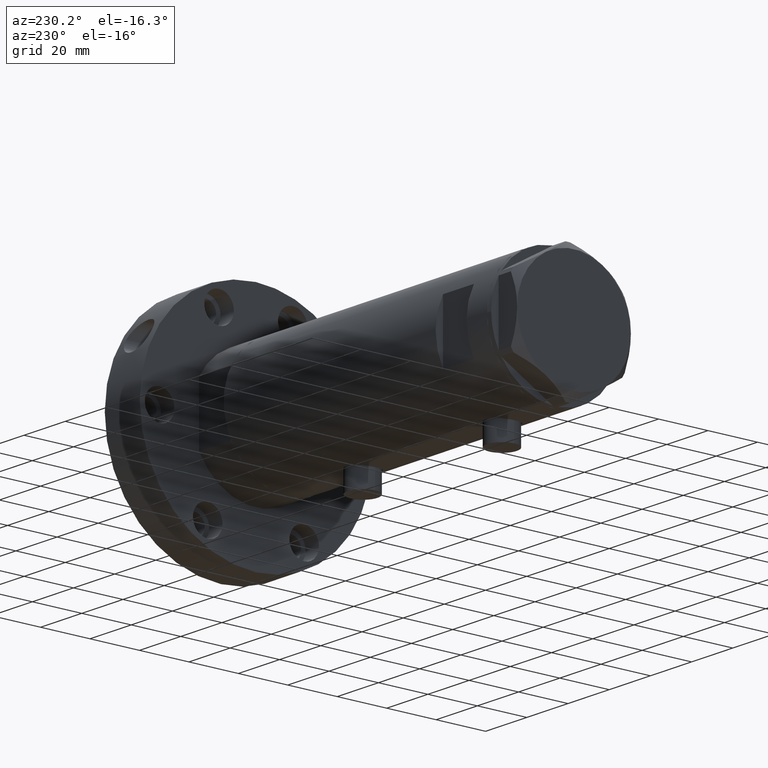
[diagram: clean part render]
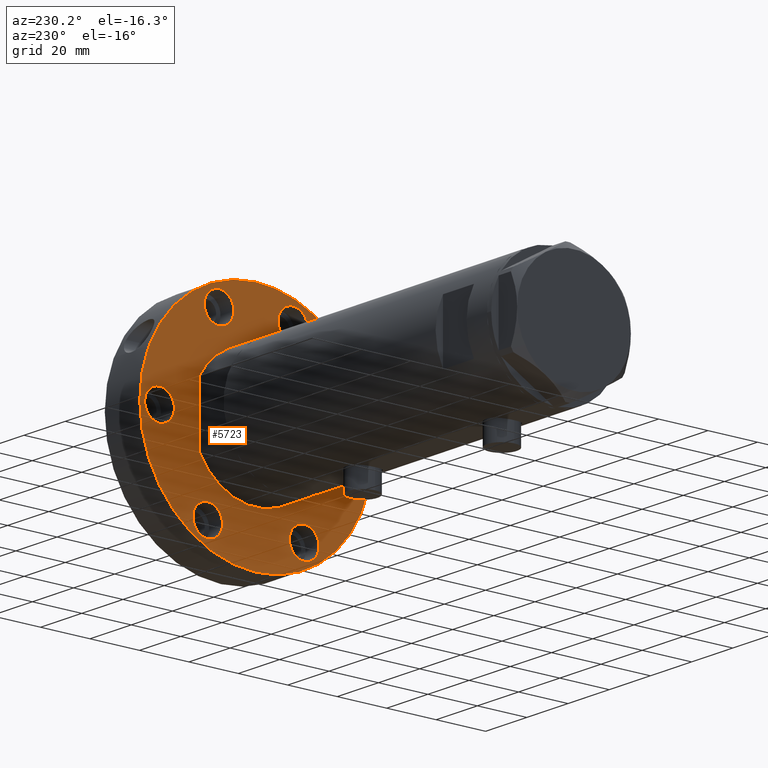
[diagram: same view with one face highlighted and labeled with its STEP entity id]
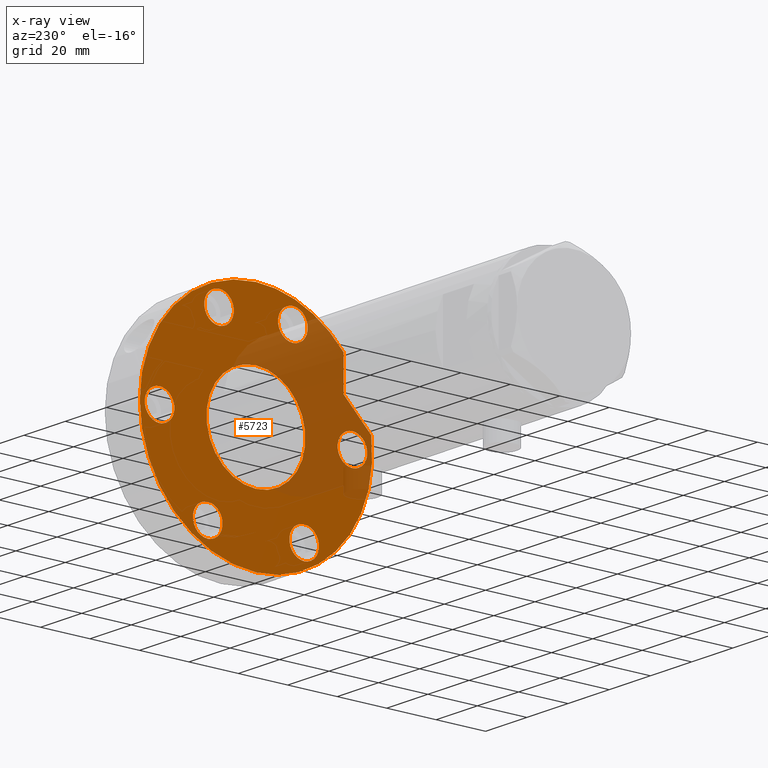
[diagram: x-ray of the same camera — body ghosted, the highlighted face saturated]
A machine part, auxiliary view. The second image highlights one B-rep face of the part: STEP entity #5723.
The next image is the same camera in x-ray: the body ghosted, the highlighted face saturated — about 29% of this face is hidden behind the body in this view.
In plain terms, the highlighted planar face has unit normal (1, 0, -0).
Its self-contained STEP definition (entity closure, byte-faithful):
#7 = ORIENTED_EDGE ( 'NONE', *, *, #1942, .F. ) ;
#12 = CARTESIAN_POINT ( 'NONE',  ( -33.77499074759315079, 19.49999999999992539, 0.000000000000000000 ) ) ;
#36 = CIRCLE ( 'NONE', #3176, 5.999999999999998224 ) ;
#124 = EDGE_LOOP ( 'NONE', ( #630, #1442 ) ) ;
#139 = CIRCLE ( 'NONE', #2147, 46.99999999999999289 ) ;
#142 = CARTESIAN_POINT ( 'NONE',  ( -46.99999999999999289, 0.000000000000000000, 0.000000000000000000 ) ) ;
#193 = DIRECTION ( 'NONE',  ( 0.7071067811865511255, -0.7071067811865440200, -0.000000000000000000 ) ) ;
#277 = DIRECTION ( 'NONE',  ( 1.000000000000000000, 0.000000000000000000, 0.000000000000000000 ) ) ;
#289 = DIRECTION ( 'NONE',  ( 0.000000000000000000, 0.000000000000000000, 1.000000000000000000 ) ) ;
#369 = ORIENTED_EDGE ( 'NONE', *, *, #6206, .T. ) ;
#404 = PLANE ( 'NONE',  #6322 ) ;
#520 = VERTEX_POINT ( 'NONE', #3213 ) ;
#561 = AXIS2_PLACEMENT_3D ( 'NONE', #3574, #2091, #5622 ) ;
#624 = VERTEX_POINT ( 'NONE', #5385 ) ;
#630 = ORIENTED_EDGE ( 'NONE', *, *, #6104, .F. ) ;
#636 = DIRECTION ( 'NONE',  ( -1.000000000000000000, 0.000000000000000000, 0.000000000000000000 ) ) ;
#643 = CIRCLE ( 'NONE', #3566, 5.999999999999998224 ) ;
#650 = CARTESIAN_POINT ( 'NONE',  ( 46.99999999999999289, 5.755839955992559063E-15, 0.000000000000000000 ) ) ;
#702 = CARTESIAN_POINT ( 'NONE',  ( 36.03130176794011419, -14.92465386223865842, 0.000000000000000000 ) ) ;
#706 = EDGE_LOOP ( 'NONE', ( #2888, #2018 ) ) ;
#707 = EDGE_LOOP ( 'NONE', ( #369, #4158 ) ) ;
#766 = DIRECTION ( 'NONE',  ( -1.000000000000000000, 0.000000000000000000, 0.000000000000000000 ) ) ;
#772 = VERTEX_POINT ( 'NONE', #5580 ) ;
#792 = VERTEX_POINT ( 'NONE', #2179 ) ;
#806 = DIRECTION ( 'NONE',  ( 0.000000000000000000, 0.000000000000000000, -1.000000000000000000 ) ) ;
#808 = DIRECTION ( 'NONE',  ( -1.000000000000000000, 0.000000000000000000, 0.000000000000000000 ) ) ;
#831 = CARTESIAN_POINT ( 'NONE',  ( 6.092310621118299352, 46.60347359688769586, 0.000000000000000000 ) ) ;
#992 = EDGE_LOOP ( 'NONE', ( #6404, #5336 ) ) ;
#996 = CARTESIAN_POINT ( 'NONE',  ( 6.000000000000000000, -39.00000000000000000, 0.000000000000000000 ) ) ;
#1014 = CARTESIAN_POINT ( 'NONE',  ( -33.77499074759302289, -19.50000000000015277, 0.000000000000000000 ) ) ;
#1036 = ORIENTED_EDGE ( 'NONE', *, *, #1489, .F. ) ;
#1061 = FACE_OUTER_BOUND ( 'NONE', #3262, .T. ) ;
#1078 = CARTESIAN_POINT ( 'NONE',  ( 0.000000000000000000, 0.000000000000000000, 0.000000000000000000 ) ) ;
#1102 = EDGE_LOOP ( 'NONE', ( #3633, #1036 ) ) ;
#1120 = DIRECTION ( 'NONE',  ( 0.000000000000000000, 0.000000000000000000, -1.000000000000000000 ) ) ;
#1173 = ORIENTED_EDGE ( 'NONE', *, *, #3411, .F. ) ;
#1201 = CARTESIAN_POINT ( 'NONE',  ( 36.03130176794011419, -14.92465386223865842, 0.000000000000000000 ) ) ;
#1220 = DIRECTION ( 'NONE',  ( 0.000000000000000000, 0.000000000000000000, -1.000000000000000000 ) ) ;
#1225 = VERTEX_POINT ( 'NONE', #3810 ) ;
#1237 = DIRECTION ( 'NONE',  ( 0.000000000000000000, 0.000000000000000000, -1.000000000000000000 ) ) ;
#1272 = DIRECTION ( 'NONE',  ( 0.000000000000000000, 0.000000000000000000, 1.000000000000000000 ) ) ;
#1288 = VERTEX_POINT ( 'NONE', #3908 ) ;
#1298 = CARTESIAN_POINT ( 'NONE',  ( 0.000000000000000000, 39.00000000000000000, 0.000000000000000000 ) ) ;
#1304 = CIRCLE ( 'NONE', #561, 6.000000000000005329 ) ;
#1374 = EDGE_CURVE ( 'NONE', #1288, #792, #5618, .T. ) ;
#1442 = ORIENTED_EDGE ( 'NONE', *, *, #3079, .F. ) ;
#1485 = ORIENTED_EDGE ( 'NONE', *, *, #1374, .F. ) ;
#1489 = EDGE_CURVE ( 'NONE', #4906, #6083, #2795, .T. ) ;
#1497 = FACE_BOUND ( 'NONE', #992, .T. ) ;
#1565 = FACE_BOUND ( 'NONE', #707, .T. ) ;
#1572 = CARTESIAN_POINT ( 'NONE',  ( -6.000000000000000888, 39.00000000000000000, 0.000000000000000000 ) ) ;
#1585 = EDGE_CURVE ( 'NONE', #5487, #5863, #4676, .T. ) ;
#1590 = VERTEX_POINT ( 'NONE', #2705 ) ;
#1603 = CIRCLE ( 'NONE', #1915, 6.000000000000000888 ) ;
#1608 = EDGE_CURVE ( 'NONE', #1590, #6112, #4034, .T. ) ;
#1711 = CARTESIAN_POINT ( 'NONE',  ( 42.03130176794011419, 14.92465386223865842, 0.000000000000000000 ) ) ;
#1808 = EDGE_CURVE ( 'NONE', #6083, #4906, #1973, .T. ) ;
#1867 = DIRECTION ( 'NONE',  ( 1.000000000000000000, -1.019675812477181606E-15, 0.000000000000000000 ) ) ;
#1915 = AXIS2_PLACEMENT_3D ( 'NONE', #3278, #5282, #808 ) ;
#1927 = FACE_BOUND ( 'NONE', #706, .T. ) ;
#1942 = EDGE_CURVE ( 'NONE', #5143, #624, #1979, .T. ) ;
#1973 = CIRCLE ( 'NONE', #2586, 5.999999999999998224 ) ;
#1979 = CIRCLE ( 'NONE', #3627, 6.000000000000000888 ) ;
#1996 = ORIENTED_EDGE ( 'NONE', *, *, #2993, .T. ) ;
#2018 = ORIENTED_EDGE ( 'NONE', *, *, #3749, .F. ) ;
#2024 = FACE_BOUND ( 'NONE', #124, .T. ) ;
#2039 = CIRCLE ( 'NONE', #4105, 5.999999999999998224 ) ;
#2054 = FACE_BOUND ( 'NONE', #1102, .T. ) ;
#2069 = ORIENTED_EDGE ( 'NONE', *, *, #3448, .T. ) ;
#2091 = DIRECTION ( 'NONE',  ( 0.000000000000000000, 0.000000000000000000, -1.000000000000000000 ) ) ;
#2105 = CARTESIAN_POINT ( 'NONE',  ( 30.03130176794011774, -14.92465386223865842, 0.000000000000000000 ) ) ;
#2141 = VERTEX_POINT ( 'NONE', #2105 ) ;
#2147 = AXIS2_PLACEMENT_3D ( 'NONE', #6253, #289, #5696 ) ;
#2179 = CARTESIAN_POINT ( 'NONE',  ( -39.77499074759302289, -19.50000000000015277, 0.000000000000000000 ) ) ;
#2294 = CARTESIAN_POINT ( 'NONE',  ( 20.00000000000000000, 0.000000000000000000, 0.000000000000000000 ) ) ;
#2314 = ORIENTED_EDGE ( 'NONE', *, *, #6124, .F. ) ;
#2321 = CARTESIAN_POINT ( 'NONE',  ( -33.77499074759315079, 19.49999999999992539, 0.000000000000000000 ) ) ;
#2406 = CARTESIAN_POINT ( 'NONE',  ( 0.000000000000000000, 0.000000000000000000, 0.000000000000000000 ) ) ;
#2579 = DIRECTION ( 'NONE',  ( 1.000000000000000000, 0.000000000000000000, 0.000000000000000000 ) ) ;
#2586 = AXIS2_PLACEMENT_3D ( 'NONE', #3641, #2627, #4135 ) ;
#2627 = DIRECTION ( 'NONE',  ( 0.000000000000000000, 0.000000000000000000, -1.000000000000000000 ) ) ;
#2629 = DIRECTION ( 'NONE',  ( -1.000000000000000000, 0.000000000000000000, 0.000000000000000000 ) ) ;
#2692 = LINE ( 'NONE', #4688, #4293 ) ;
#2705 = CARTESIAN_POINT ( 'NONE',  ( -20.00000000000000000, 2.449293598294706513E-15, 0.000000000000000000 ) ) ;
#2760 = DIRECTION ( 'NONE',  ( 0.000000000000000000, 0.000000000000000000, -1.000000000000000000 ) ) ;
#2761 = VERTEX_POINT ( 'NONE', #5544 ) ;
#2795 = CIRCLE ( 'NONE', #6457, 5.999999999999998224 ) ;
#2871 = DIRECTION ( 'NONE',  ( -1.000000000000000000, 0.000000000000000000, 0.000000000000000000 ) ) ;
#2888 = ORIENTED_EDGE ( 'NONE', *, *, #4433, .F. ) ;
#2954 = VERTEX_POINT ( 'NONE', #831 ) ;
#2993 = EDGE_CURVE ( 'NONE', #2954, #520, #2692, .T. ) ;
#3079 = EDGE_CURVE ( 'NONE', #2761, #1225, #643, .T. ) ;
#3176 = AXIS2_PLACEMENT_3D ( 'NONE', #2321, #1220, #5332 ) ;
#3193 = CARTESIAN_POINT ( 'NONE',  ( 30.83217135699462830, 35.47361286101148892, 0.000000000000000000 ) ) ;
#3213 = CARTESIAN_POINT ( 'NONE',  ( 17.22217135699460755, 35.47361286101150313, 0.000000000000000000 ) ) ;
#3256 = CIRCLE ( 'NONE', #5362, 6.000000000000000000 ) ;
#3262 = EDGE_LOOP ( 'NONE', ( #1996, #2069, #2314, #4969, #5934 ) ) ;
#3278 = CARTESIAN_POINT ( 'NONE',  ( 0.000000000000000000, 39.00000000000000000, 0.000000000000000000 ) ) ;
#3286 = EDGE_LOOP ( 'NONE', ( #7, #1173 ) ) ;
#3296 = CARTESIAN_POINT ( 'NONE',  ( 30.03130176794011774, 14.92465386223865842, 0.000000000000000000 ) ) ;
#3386 = AXIS2_PLACEMENT_3D ( 'NONE', #1078, #6091, #2579 ) ;
#3411 = EDGE_CURVE ( 'NONE', #624, #5143, #1603, .T. ) ;
#3448 = EDGE_CURVE ( 'NONE', #520, #4914, #6203, .T. ) ;
#3566 = AXIS2_PLACEMENT_3D ( 'NONE', #12, #1120, #4476 ) ;
#3574 = CARTESIAN_POINT ( 'NONE',  ( -33.77499074759302289, -19.50000000000015277, 0.000000000000000000 ) ) ;
#3577 = CARTESIAN_POINT ( 'NONE',  ( 0.000000000000000000, 0.000000000000000000, 0.000000000000000000 ) ) ;
#3627 = AXIS2_PLACEMENT_3D ( 'NONE', #1298, #806, #766 ) ;
#3633 = ORIENTED_EDGE ( 'NONE', *, *, #1808, .F. ) ;
#3641 = CARTESIAN_POINT ( 'NONE',  ( 36.03130176794011419, 14.92465386223865842, 0.000000000000000000 ) ) ;
#3671 = DIRECTION ( 'NONE',  ( -1.000000000000000000, 0.000000000000000000, 0.000000000000000000 ) ) ;
#3677 = VERTEX_POINT ( 'NONE', #4256 ) ;
#3727 = AXIS2_PLACEMENT_3D ( 'NONE', #3577, #5594, #6269 ) ;
#3749 = EDGE_CURVE ( 'NONE', #3882, #3677, #4824, .T. ) ;
#3810 = CARTESIAN_POINT ( 'NONE',  ( -39.77499074759315079, 19.49999999999992539, 0.000000000000000000 ) ) ;
#3882 = VERTEX_POINT ( 'NONE', #996 ) ;
#3886 = DIRECTION ( 'NONE',  ( 0.000000000000000000, 0.000000000000000000, -1.000000000000000000 ) ) ;
#3908 = CARTESIAN_POINT ( 'NONE',  ( -27.77499074759301578, -19.50000000000015277, 0.000000000000000000 ) ) ;
#3933 = CARTESIAN_POINT ( 'NONE',  ( 17.22217135699461110, 35.47361286101150313, 0.000000000000000000 ) ) ;
#4034 = CIRCLE ( 'NONE', #6241, 20.00000000000000000 ) ;
#4101 = CARTESIAN_POINT ( 'NONE',  ( 36.03130176794011419, 14.92465386223865842, 0.000000000000000000 ) ) ;
#4105 = AXIS2_PLACEMENT_3D ( 'NONE', #1201, #6264, #3671 ) ;
#4135 = DIRECTION ( 'NONE',  ( -1.000000000000000000, 0.000000000000000000, 0.000000000000000000 ) ) ;
#4158 = ORIENTED_EDGE ( 'NONE', *, *, #1608, .T. ) ;
#4256 = CARTESIAN_POINT ( 'NONE',  ( -6.000000000000000000, -39.00000000000000000, 0.000000000000000000 ) ) ;
#4293 = VECTOR ( 'NONE', #193, 999.9999999999998863 ) ;
#4329 = CIRCLE ( 'NONE', #3386, 46.99999999999999289 ) ;
#4387 = DIRECTION ( 'NONE',  ( 0.000000000000000000, 0.000000000000000000, 1.000000000000000000 ) ) ;
#4424 = CIRCLE ( 'NONE', #4855, 20.00000000000000000 ) ;
#4433 = EDGE_CURVE ( 'NONE', #3677, #3882, #3256, .T. ) ;
#4450 = ORIENTED_EDGE ( 'NONE', *, *, #5115, .F. ) ;
#4469 = DIRECTION ( 'NONE',  ( 0.000000000000000000, 0.000000000000000000, 1.000000000000000000 ) ) ;
#4476 = DIRECTION ( 'NONE',  ( -1.000000000000000000, 0.000000000000000000, 0.000000000000000000 ) ) ;
#4676 = CIRCLE ( 'NONE', #3727, 46.99999999999999289 ) ;
#4688 = CARTESIAN_POINT ( 'NONE',  ( 17.22217135699461110, 35.47361286101150313, 0.000000000000000000 ) ) ;
#4750 = DIRECTION ( 'NONE',  ( -1.000000000000000000, 0.000000000000000000, 0.000000000000000000 ) ) ;
#4824 = CIRCLE ( 'NONE', #6405, 6.000000000000000000 ) ;
#4855 = AXIS2_PLACEMENT_3D ( 'NONE', #4868, #4469, #5993 ) ;
#4868 = CARTESIAN_POINT ( 'NONE',  ( 0.000000000000000000, 0.000000000000000000, 0.000000000000000000 ) ) ;
#4906 = VERTEX_POINT ( 'NONE', #1711 ) ;
#4914 = VERTEX_POINT ( 'NONE', #3193 ) ;
#4929 = DIRECTION ( 'NONE',  ( 0.000000000000000000, 0.000000000000000000, -1.000000000000000000 ) ) ;
#4948 = CIRCLE ( 'NONE', #6114, 5.999999999999998224 ) ;
#4969 = ORIENTED_EDGE ( 'NONE', *, *, #1585, .F. ) ;
#5115 = EDGE_CURVE ( 'NONE', #792, #1288, #1304, .T. ) ;
#5143 = VERTEX_POINT ( 'NONE', #1572 ) ;
#5206 = EDGE_CURVE ( 'NONE', #2141, #772, #2039, .T. ) ;
#5241 = EDGE_CURVE ( 'NONE', #772, #2141, #4948, .T. ) ;
#5277 = EDGE_LOOP ( 'NONE', ( #4450, #1485 ) ) ;
#5282 = DIRECTION ( 'NONE',  ( 0.000000000000000000, 0.000000000000000000, -1.000000000000000000 ) ) ;
#5332 = DIRECTION ( 'NONE',  ( -1.000000000000000000, 0.000000000000000000, 0.000000000000000000 ) ) ;
#5336 = ORIENTED_EDGE ( 'NONE', *, *, #5241, .F. ) ;
#5362 = AXIS2_PLACEMENT_3D ( 'NONE', #5439, #3886, #5408 ) ;
#5385 = CARTESIAN_POINT ( 'NONE',  ( 6.000000000000000888, 39.00000000000000000, 0.000000000000000000 ) ) ;
#5408 = DIRECTION ( 'NONE',  ( -1.000000000000000000, 0.000000000000000000, 0.000000000000000000 ) ) ;
#5439 = CARTESIAN_POINT ( 'NONE',  ( 0.000000000000000000, -39.00000000000000000, 0.000000000000000000 ) ) ;
#5461 = VECTOR ( 'NONE', #1867, 1000.000000000000000 ) ;
#5487 = VERTEX_POINT ( 'NONE', #142 ) ;
#5544 = CARTESIAN_POINT ( 'NONE',  ( -27.77499074759315434, 19.49999999999992539, 0.000000000000000000 ) ) ;
#5580 = CARTESIAN_POINT ( 'NONE',  ( 42.03130176794011419, -14.92465386223865842, 0.000000000000000000 ) ) ;
#5594 = DIRECTION ( 'NONE',  ( 0.000000000000000000, 0.000000000000000000, 1.000000000000000000 ) ) ;
#5618 = CIRCLE ( 'NONE', #5824, 6.000000000000005329 ) ;
#5622 = DIRECTION ( 'NONE',  ( -1.000000000000000000, 0.000000000000000000, 0.000000000000000000 ) ) ;
#5625 = DIRECTION ( 'NONE',  ( 0.000000000000000000, 0.000000000000000000, -1.000000000000000000 ) ) ;
#5696 = DIRECTION ( 'NONE',  ( 1.000000000000000000, 0.000000000000000000, 0.000000000000000000 ) ) ;
#5723 = ADVANCED_FACE ( 'NONE', ( #5976, #2054, #1497, #1927, #6490, #2024, #1565, #1061 ), #404, .F. ) ;
#5817 = CARTESIAN_POINT ( 'NONE',  ( 0.000000000000000000, 0.000000000000000000, 0.000000000000000000 ) ) ;
#5824 = AXIS2_PLACEMENT_3D ( 'NONE', #1014, #4929, #2871 ) ;
#5863 = VERTEX_POINT ( 'NONE', #650 ) ;
#5934 = ORIENTED_EDGE ( 'NONE', *, *, #6320, .F. ) ;
#5976 = FACE_BOUND ( 'NONE', #3286, .T. ) ;
#5993 = DIRECTION ( 'NONE',  ( 1.000000000000000000, 0.000000000000000000, 0.000000000000000000 ) ) ;
#6083 = VERTEX_POINT ( 'NONE', #3296 ) ;
#6091 = DIRECTION ( 'NONE',  ( 0.000000000000000000, 0.000000000000000000, 1.000000000000000000 ) ) ;
#6104 = EDGE_CURVE ( 'NONE', #1225, #2761, #36, .T. ) ;
#6112 = VERTEX_POINT ( 'NONE', #2294 ) ;
#6114 = AXIS2_PLACEMENT_3D ( 'NONE', #702, #1237, #2629 ) ;
#6124 = EDGE_CURVE ( 'NONE', #5863, #4914, #139, .T. ) ;
#6165 = CARTESIAN_POINT ( 'NONE',  ( 0.000000000000000000, -39.00000000000000000, 0.000000000000000000 ) ) ;
#6203 = LINE ( 'NONE', #3933, #5461 ) ;
#6206 = EDGE_CURVE ( 'NONE', #6112, #1590, #4424, .T. ) ;
#6241 = AXIS2_PLACEMENT_3D ( 'NONE', #5817, #1272, #277 ) ;
#6253 = CARTESIAN_POINT ( 'NONE',  ( 0.000000000000000000, 0.000000000000000000, 0.000000000000000000 ) ) ;
#6264 = DIRECTION ( 'NONE',  ( 0.000000000000000000, 0.000000000000000000, -1.000000000000000000 ) ) ;
#6269 = DIRECTION ( 'NONE',  ( 1.000000000000000000, 0.000000000000000000, 0.000000000000000000 ) ) ;
#6320 = EDGE_CURVE ( 'NONE', #2954, #5487, #4329, .T. ) ;
#6322 = AXIS2_PLACEMENT_3D ( 'NONE', #2406, #4387, #6398 ) ;
#6398 = DIRECTION ( 'NONE',  ( 1.000000000000000000, 0.000000000000000000, -0.000000000000000000 ) ) ;
#6404 = ORIENTED_EDGE ( 'NONE', *, *, #5206, .F. ) ;
#6405 = AXIS2_PLACEMENT_3D ( 'NONE', #6165, #2760, #4750 ) ;
#6457 = AXIS2_PLACEMENT_3D ( 'NONE', #4101, #5625, #636 ) ;
#6490 = FACE_BOUND ( 'NONE', #5277, .T. ) ;